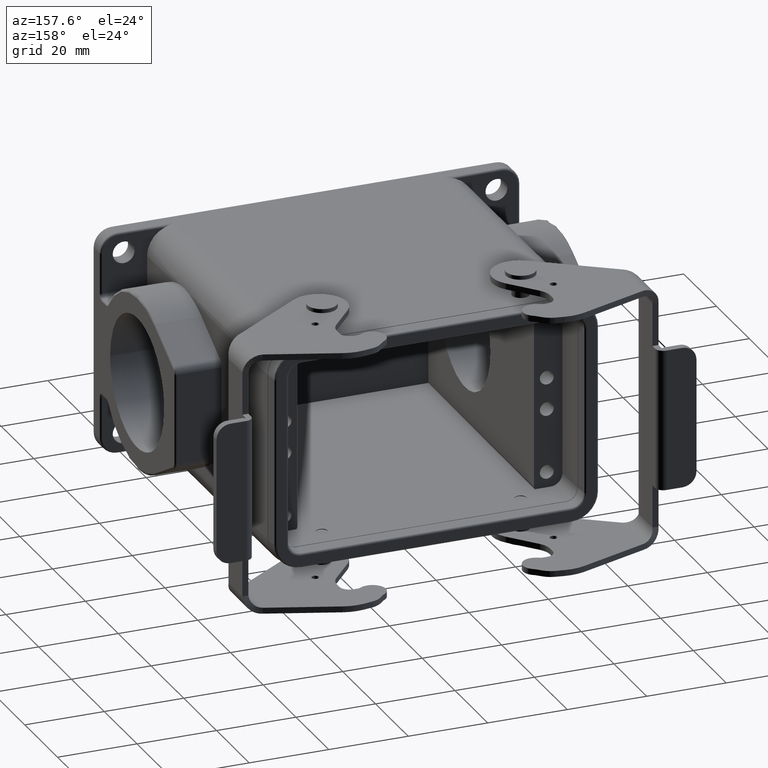
[diagram: clean part render]
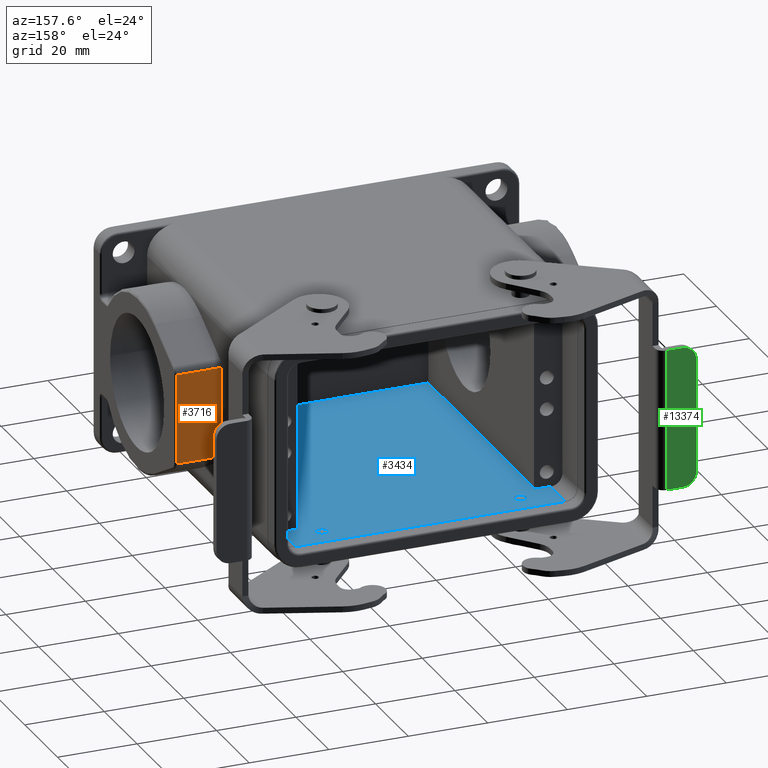
[diagram: same view with three faces highlighted in distinct colors, each labeled with its STEP entity id]
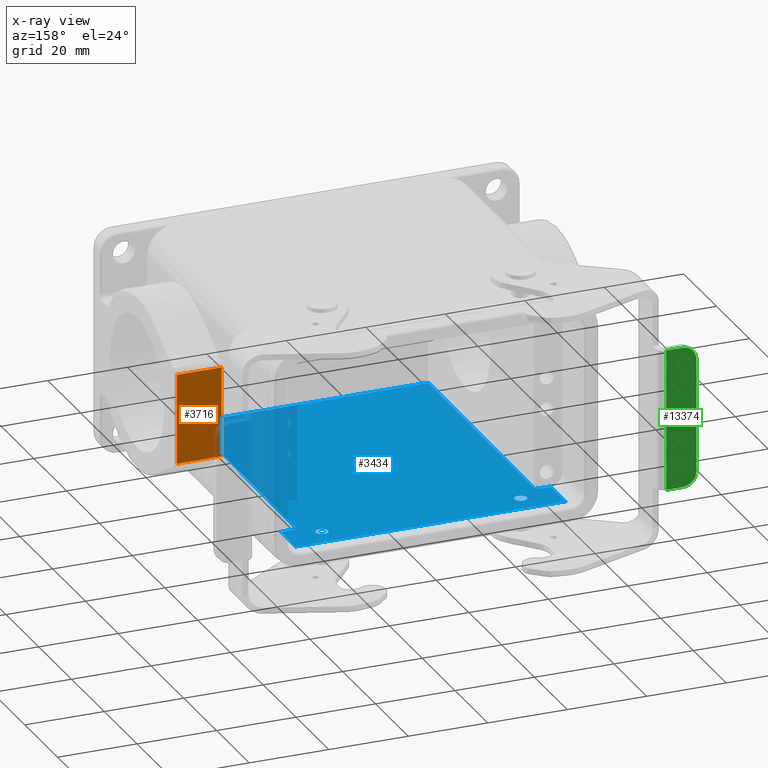
[diagram: x-ray of the same camera — body ghosted, the three highlighted faces saturated]
A machine part, auxiliary view with three faces highlighted in distinct colors.
The next image is the same camera in x-ray (body ghosted, the three faces saturated) — at least one of them is partly hidden behind the body in this view.
Their STEP definitions:

[orange] entity #3716 — the highlighted planar face has unit normal (0, 1, 0).
#536=DIRECTION('',(1.E0,8.928944113092E-14,5.077550965719E-14));
#537=VECTOR('',#536,1.13E1);
#538=CARTESIAN_POINT('',(4.1E1,4.85E1,1.131623794054E1));
#539=LINE('',#538,#537);
#548=DIRECTION('',(-1.E0,5.093270937749E-14,3.644015276351E-11));
#549=VECTOR('',#548,1.13E1);
#550=CARTESIAN_POINT('',(5.23E1,4.85E1,-1.131623794036E1));
#551=LINE('',#550,#549);
#809=DIRECTION('',(0.E0,-8.947526587778E-14,-1.E0));
#810=VECTOR('',#809,2.263247588090E1);
#811=CARTESIAN_POINT('',(5.23E1,4.85E1,1.131623794054E1));
#812=LINE('',#811,#810);
#1752=DIRECTION('',(0.E0,-1.946479468254E-14,-1.E0));
#1753=VECTOR('',#1752,2.263247588049E1);
#1754=CARTESIAN_POINT('',(4.1E1,4.85E1,1.131623794054E1));
#1755=LINE('',#1754,#1753);
#2637=CARTESIAN_POINT('',(5.23E1,4.85E1,-1.131623794054E1));
#2638=VERTEX_POINT('',#2637);
#2639=CARTESIAN_POINT('',(5.23E1,4.85E1,1.131623794054E1));
#2640=VERTEX_POINT('',#2639);
#2686=CARTESIAN_POINT('',(4.1E1,4.85E1,1.131623794054E1));
#2687=VERTEX_POINT('',#2686);
#2688=CARTESIAN_POINT('',(4.1E1,4.85E1,-1.131623793995E1));
#2689=VERTEX_POINT('',#2688);
#3702=CARTESIAN_POINT('',(4.665E1,4.85E1,1.266986515702E-10));
#3703=DIRECTION('',(0.E0,1.E0,0.E0));
#3704=DIRECTION('',(0.E0,0.E0,-1.E0));
#3705=AXIS2_PLACEMENT_3D('',#3702,#3703,#3704);
#3706=PLANE('',#3705);
#3708=ORIENTED_EDGE('',*,*,#3707,.F.);
#3710=ORIENTED_EDGE('',*,*,#3709,.F.);
#3711=ORIENTED_EDGE('',*,*,#3692,.F.);
#3713=ORIENTED_EDGE('',*,*,#3712,.T.);
#3714=EDGE_LOOP('',(#3708,#3710,#3711,#3713));
#3715=FACE_OUTER_BOUND('',#3714,.F.);
#3716=ADVANCED_FACE('',(#3715),#3706,.T.);
#3692=EDGE_CURVE('',#2687,#2640,#539,.T.);
#3707=EDGE_CURVE('',#2638,#2689,#551,.T.);
#3709=EDGE_CURVE('',#2640,#2638,#812,.T.);
#3712=EDGE_CURVE('',#2687,#2689,#1755,.T.);

[blue] entity #3434 — the highlighted planar face has unit normal (0, 0.0087, 1).
#58=DIRECTION('',(-1.E0,-7.791093560700E-13,-1.639753412194E-12));
#59=VECTOR('',#58,3.921572421078E0);
#60=CARTESIAN_POINT('',(-3.E1,6.75E1,-2.392145818988E1));
#61=LINE('',#60,#59);
#240=DIRECTION('',(-8.726203232145E-3,9.999238504777E-1,-8.726203242659E-3));
#241=VECTOR('',#240,9.000685397894E0);
#242=CARTESIAN_POINT('',(-3.392157242108E1,6.75E1,-2.392145818989E1));
#243=LINE('',#242,#241);
#244=DIRECTION('',(1.E0,3.594498233759E-14,0.E0));
#245=VECTOR('',#244,6.800022846190E1);
#246=CARTESIAN_POINT('',(-3.400011423109E1,7.65E1,-2.399999999999E1));
#247=LINE('',#246,#245);
#248=DIRECTION('',(-8.726203234119E-3,-9.999238504777E-1,8.726203242658E-3));
#249=VECTOR('',#248,9.000685397894E0);
#250=CARTESIAN_POINT('',(3.400011423081E1,7.65E1,-2.399999999999E1));
#251=LINE('',#250,#249);
#252=DIRECTION('',(-3.490518503498E-3,-9.999558314179E-1,8.726482337377E-3));
#253=VECTOR('',#252,6.450284899938E1);
#254=CARTESIAN_POINT('',(3.E1,6.75E1,-2.392145818988E1));
#255=LINE('',#254,#253);
#256=DIRECTION('',(-1.E0,-3.576893537336E-12,2.589228246525E-14));
#257=VECTOR('',#256,5.954970322408E1);
#258=CARTESIAN_POINT('',(2.977485161204E1,3.000000000001E0,-2.335857521738E1));
#259=LINE('',#258,#257);
#260=DIRECTION('',(-3.490518503497E-3,9.999558314179E-1,-8.726482337378E-3));
#261=VECTOR('',#260,6.450284899960E1);
#262=CARTESIAN_POINT('',(-2.977485161204E1,2.999999999788E0,-2.335857521738E1));
#263=LINE('',#262,#261);
#264=CARTESIAN_POINT('',(2.350000064421E1,7.09E1,-2.395112954037E1));
#265=CARTESIAN_POINT('',(2.350000064421E1,7.072325703317E1,-2.394958712786E1));
#266=CARTESIAN_POINT('',(2.355773932120E1,7.039029182697E1,-2.394668138453E1));
#267=CARTESIAN_POINT('',(2.382407997258E1,6.991798080872E1,-2.394255958872E1));
#268=CARTESIAN_POINT('',(2.423193453837E1,6.957605543718E1,-2.393957565121E1));
#269=CARTESIAN_POINT('',(2.473359668222E1,6.939225367247E1,-2.393797163751E1));
#270=CARTESIAN_POINT('',(2.526753825440E1,6.939246345142E1,-2.393797346822E1));
#271=CARTESIAN_POINT('',(2.576904742370E1,6.957661385286E1,-2.393958052443E1));
#272=CARTESIAN_POINT('',(2.617672150041E1,6.991895585159E1,-2.394256809779E1));
#273=CARTESIAN_POINT('',(2.644249092965E1,7.039114649015E1,-2.394668884306E1));
#274=CARTESIAN_POINT('',(2.649999935579E1,7.072360895778E1,-2.394959019906E1));
#275=CARTESIAN_POINT('',(2.649999935579E1,7.09E1,-2.395112954037E1));
#277=CARTESIAN_POINT('',(2.649999935579E1,7.09E1,-2.395112954037E1));
#278=CARTESIAN_POINT('',(2.649999935579E1,7.107674296683E1,-2.395267195287E1));
#279=CARTESIAN_POINT('',(2.644226067879E1,7.140970817303E1,-2.395557769621E1));
#280=CARTESIAN_POINT('',(2.617592002741E1,7.188201919128E1,-2.395969949202E1));
#281=CARTESIAN_POINT('',(2.576806546163E1,7.222394456282E1,-2.396268342953E1));
#282=CARTESIAN_POINT('',(2.526640331777E1,7.240774632753E1,-2.396428744323E1));
#283=CARTESIAN_POINT('',(2.473246174559E1,7.240753654858E1,-2.396428561252E1));
#284=CARTESIAN_POINT('',(2.423095257629E1,7.222338614714E1,-2.396267855631E1));
#285=CARTESIAN_POINT('',(2.382327849958E1,7.188104414841E1,-2.395969098295E1));
#286=CARTESIAN_POINT('',(2.355750907034E1,7.140885350985E1,-2.395557023768E1));
#287=CARTESIAN_POINT('',(2.350000064421E1,7.107639104222E1,-2.395266888167E1));
#288=CARTESIAN_POINT('',(2.350000064421E1,7.09E1,-2.395112954037E1));
#290=CARTESIAN_POINT('',(-2.649999935579E1,7.09E1,-2.395112954037E1));
#291=CARTESIAN_POINT('',(-2.649999935579E1,7.072325703317E1,-2.394958712786E1));
#292=CARTESIAN_POINT('',(-2.644226067880E1,7.039029182697E1,-2.394668138453E1));
#293=CARTESIAN_POINT('',(-2.617592002741E1,6.991798080872E1,-2.394255958872E1));
#294=CARTESIAN_POINT('',(-2.576806546163E1,6.957605543718E1,-2.393957565121E1));
#295=CARTESIAN_POINT('',(-2.526640331777E1,6.939225367247E1,-2.393797163751E1));
#296=CARTESIAN_POINT('',(-2.473246174559E1,6.939246345142E1,-2.393797346822E1));
#297=CARTESIAN_POINT('',(-2.423095257629E1,6.957661385286E1,-2.393958052443E1));
#298=CARTESIAN_POINT('',(-2.382327849959E1,6.991895585159E1,-2.394256809779E1));
#299=CARTESIAN_POINT('',(-2.355750907034E1,7.039114649015E1,-2.394668884307E1));
#300=CARTESIAN_POINT('',(-2.350000064421E1,7.072360895778E1,-2.394959019906E1));
#301=CARTESIAN_POINT('',(-2.350000064421E1,7.09E1,-2.395112954037E1));
#303=CARTESIAN_POINT('',(-2.350000064421E1,7.09E1,-2.395112954037E1));
#304=CARTESIAN_POINT('',(-2.350000064421E1,7.107674296683E1,-2.395267195287E1));
#305=CARTESIAN_POINT('',(-2.355773932121E1,7.140970817303E1,-2.395557769621E1));
#306=CARTESIAN_POINT('',(-2.382407997259E1,7.188201919128E1,-2.395969949202E1));
#307=CARTESIAN_POINT('',(-2.423193453837E1,7.222394456282E1,-2.396268342953E1));
#308=CARTESIAN_POINT('',(-2.473359668223E1,7.240774632753E1,-2.396428744323E1));
#309=CARTESIAN_POINT('',(-2.526753825441E1,7.240753654858E1,-2.396428561252E1));
#310=CARTESIAN_POINT('',(-2.576904742371E1,7.222338614714E1,-2.396267855631E1));
#311=CARTESIAN_POINT('',(-2.617672150042E1,7.188104414841E1,-2.395969098295E1));
#312=CARTESIAN_POINT('',(-2.644249092966E1,7.140885350985E1,-2.395557023768E1));
#313=CARTESIAN_POINT('',(-2.649999935579E1,7.107639104222E1,-2.395266888167E1));
#314=CARTESIAN_POINT('',(-2.649999935579E1,7.09E1,-2.395112954037E1));
#342=CARTESIAN_POINT('',(-3.400011423081E1,7.65E1,-2.399999999998E1));
#360=CARTESIAN_POINT('',(3.400011423081E1,7.65E1,-2.399999999999E1));
#1806=DIRECTION('',(-1.E0,2.899011557689E-14,1.819129752450E-12));
#1807=VECTOR('',#1806,3.921572420782E0);
#1808=CARTESIAN_POINT('',(3.392157242078E1,6.75E1,-2.392145818989E1));
#1809=LINE('',#1808,#1807);
#2733=VERTEX_POINT('',#342);
#2742=VERTEX_POINT('',#360);
#2929=CARTESIAN_POINT('',(-2.977485161204E1,2.999999999788E0,
-2.335857521738E1));
#2931=VERTEX_POINT('',#2929);
#2937=CARTESIAN_POINT('',(2.977485161204E1,3.000000000001E0,-2.335857521738E1));
#2938=VERTEX_POINT('',#2937);
#2941=CARTESIAN_POINT('',(-3.E1,6.75E1,-2.392145818988E1));
#2942=CARTESIAN_POINT('',(-3.392157242108E1,6.75E1,-2.392145818989E1));
#2943=VERTEX_POINT('',#2941);
#2944=VERTEX_POINT('',#2942);
#2945=CARTESIAN_POINT('',(3.E1,6.75E1,-2.392145818988E1));
#2946=VERTEX_POINT('',#2945);
#2947=CARTESIAN_POINT('',(3.392157242078E1,6.75E1,-2.392145818989E1));
#2948=VERTEX_POINT('',#2947);
#2949=VERTEX_POINT('',#264);
#2950=VERTEX_POINT('',#275);
#2951=VERTEX_POINT('',#290);
#2952=VERTEX_POINT('',#301);
#3402=CARTESIAN_POINT('',(-1.506350599811E-12,3.975E1,-2.367928760869E1));
#3403=DIRECTION('',(0.E0,8.726535498301E-3,9.999619230642E-1));
#3404=DIRECTION('',(-1.E0,0.E0,0.E0));
#3405=AXIS2_PLACEMENT_3D('',#3402,#3403,#3404);
#3406=PLANE('',#3405);
#3407=ORIENTED_EDGE('',*,*,#3244,.T.);
#3409=ORIENTED_EDGE('',*,*,#3408,.T.);
#3411=ORIENTED_EDGE('',*,*,#3410,.T.);
#3413=ORIENTED_EDGE('',*,*,#3412,.T.);
#3415=ORIENTED_EDGE('',*,*,#3414,.T.);
#3417=ORIENTED_EDGE('',*,*,#3416,.T.);
#3418=ORIENTED_EDGE('',*,*,#3351,.T.);
#3419=ORIENTED_EDGE('',*,*,#3395,.T.);
#3420=EDGE_LOOP('',(#3407,#3409,#3411,#3413,#3415,#3417,#3418,#3419));
#3421=FACE_OUTER_BOUND('',#3420,.F.);
#3423=ORIENTED_EDGE('',*,*,#3422,.T.);
#3425=ORIENTED_EDGE('',*,*,#3424,.T.);
#3426=EDGE_LOOP('',(#3423,#3425));
#3427=FACE_BOUND('',#3426,.F.);
#3429=ORIENTED_EDGE('',*,*,#3428,.T.);
#3431=ORIENTED_EDGE('',*,*,#3430,.T.);
#3432=EDGE_LOOP('',(#3429,#3431));
#3433=FACE_BOUND('',#3432,.F.);
#3434=ADVANCED_FACE('',(#3421,#3427,#3433),#3406,.T.);
#276=B_SPLINE_CURVE_WITH_KNOTS('',3,(#264,#265,#266,#267,#268,#269,#270,#271,
#272,#273,#274,#275),.UNSPECIFIED.,.F.,.F.,(4,1,1,1,1,1,1,1,1,4),(0.E0,
1.111111111111E-1,2.222222222222E-1,3.333333333333E-1,4.444444444444E-1,
5.555555555556E-1,6.666666666667E-1,7.777777777778E-1,8.888888888889E-1,1.E0),
.UNSPECIFIED.);
#289=B_SPLINE_CURVE_WITH_KNOTS('',3,(#277,#278,#279,#280,#281,#282,#283,#284,
#285,#286,#287,#288),.UNSPECIFIED.,.F.,.F.,(4,1,1,1,1,1,1,1,1,4),(0.E0,
1.111111111111E-1,2.222222222222E-1,3.333333333333E-1,4.444444444444E-1,
5.555555555556E-1,6.666666666667E-1,7.777777777778E-1,8.888888888889E-1,1.E0),
.UNSPECIFIED.);
#302=B_SPLINE_CURVE_WITH_KNOTS('',3,(#290,#291,#292,#293,#294,#295,#296,#297,
#298,#299,#300,#301),.UNSPECIFIED.,.F.,.F.,(4,1,1,1,1,1,1,1,1,4),(0.E0,
1.111111111111E-1,2.222222222222E-1,3.333333333333E-1,4.444444444444E-1,
5.555555555556E-1,6.666666666667E-1,7.777777777778E-1,8.888888888889E-1,1.E0),
.UNSPECIFIED.);
#315=B_SPLINE_CURVE_WITH_KNOTS('',3,(#303,#304,#305,#306,#307,#308,#309,#310,
#311,#312,#313,#314),.UNSPECIFIED.,.F.,.F.,(4,1,1,1,1,1,1,1,1,4),(0.E0,
1.111111111111E-1,2.222222222222E-1,3.333333333333E-1,4.444444444444E-1,
5.555555555556E-1,6.666666666667E-1,7.777777777778E-1,8.888888888889E-1,1.E0),
.UNSPECIFIED.);
#3244=EDGE_CURVE('',#2943,#2944,#61,.T.);
#3351=EDGE_CURVE('',#2938,#2931,#259,.T.);
#3395=EDGE_CURVE('',#2931,#2943,#263,.T.);
#3408=EDGE_CURVE('',#2944,#2733,#243,.T.);
#3410=EDGE_CURVE('',#2733,#2742,#247,.T.);
#3412=EDGE_CURVE('',#2742,#2948,#251,.T.);
#3414=EDGE_CURVE('',#2948,#2946,#1809,.T.);
#3416=EDGE_CURVE('',#2946,#2938,#255,.T.);
#3422=EDGE_CURVE('',#2949,#2950,#276,.T.);
#3424=EDGE_CURVE('',#2950,#2949,#289,.T.);
#3428=EDGE_CURVE('',#2951,#2952,#302,.T.);
#3430=EDGE_CURVE('',#2952,#2951,#315,.T.);

[green] entity #13374 — the highlighted planar face has unit normal (0, 1, 0).
#11481=DIRECTION('',(1.E0,1.323558350903E-12,7.753024648576E-13));
#11482=VECTOR('',#11481,4.037057655425E0);
#11483=CARTESIAN_POINT('',(-5.688241501566E1,9.239377665503E1,1.775E1));
#11484=LINE('',#11483,#11482);
#11519=DIRECTION('',(0.E0,-6.696553642983E-13,1.E0));
#11520=VECTOR('',#11519,2.850000000002E1);
#11521=CARTESIAN_POINT('',(-6.038241501566E1,9.239377665504E1,
-1.425000000003E1));
#11522=LINE('',#11521,#11520);
#11549=DIRECTION('',(1.E0,-3.576423629021E-12,3.774429366356E-12));
#11550=VECTOR('',#11549,4.037057655443E0);
#11551=CARTESIAN_POINT('',(-5.688241501618E1,9.239377665505E1,
-1.775000000002E1));
#11552=LINE('',#11551,#11550);
#11883=DIRECTION('',(-1.431233222704E-11,-1.961498256464E-14,-1.E0));
#11884=VECTOR('',#11883,3.550000000001E1);
#11885=CARTESIAN_POINT('',(-5.284535736023E1,9.239377665503E1,1.775E1));
#11886=LINE('',#11885,#11884);
#11891=CARTESIAN_POINT('',(-5.688241501566E1,9.239377665506E1,
-1.425000000005E1));
#11892=DIRECTION('',(0.E0,-1.E0,0.E0));
#11893=DIRECTION('',(-1.E0,0.E0,8.571683045895E-12));
#11894=AXIS2_PLACEMENT_3D('',#11891,#11892,#11893);
#11896=CARTESIAN_POINT('',(-5.688241501566E1,9.239377665502E1,1.425E1));
#11897=DIRECTION('',(0.E0,-1.E0,0.E0));
#11898=DIRECTION('',(-4.019641762300E-12,0.E0,1.E0));
#11899=AXIS2_PLACEMENT_3D('',#11896,#11897,#11898);
#11934=CARTESIAN_POINT('',(-5.688241501566E1,9.239377665503E1,1.775E1));
#11936=VERTEX_POINT('',#11934);
#11949=CARTESIAN_POINT('',(-5.284535735963E1,9.239377665503E1,
1.775000000001E1));
#11950=VERTEX_POINT('',#11949);
#11951=CARTESIAN_POINT('',(-6.038241501566E1,9.239377665504E1,
-1.425000000003E1));
#11952=CARTESIAN_POINT('',(-6.038241501566E1,9.239377665503E1,
1.424999999999E1));
#11953=VERTEX_POINT('',#11951);
#11954=VERTEX_POINT('',#11952);
#11955=CARTESIAN_POINT('',(-5.284535736074E1,9.239377665503E1,-1.775E1));
#11956=VERTEX_POINT('',#11955);
#11957=CARTESIAN_POINT('',(-5.688241501618E1,9.239377665505E1,
-1.775000000002E1));
#11958=VERTEX_POINT('',#11957);
#13361=CARTESIAN_POINT('',(-5.661388618805E1,9.239377665503E1,
-9.993783578466E-12));
#13362=DIRECTION('',(0.E0,1.E0,0.E0));
#13363=DIRECTION('',(1.E0,0.E0,0.E0));
#13364=AXIS2_PLACEMENT_3D('',#13361,#13362,#13363);
#13365=PLANE('',#13364);
#13366=ORIENTED_EDGE('',*,*,#12810,.F.);
#13367=ORIENTED_EDGE('',*,*,#12825,.T.);
#13368=ORIENTED_EDGE('',*,*,#12846,.T.);
#13369=ORIENTED_EDGE('',*,*,#13353,.F.);
#13370=ORIENTED_EDGE('',*,*,#12772,.F.);
#13371=ORIENTED_EDGE('',*,*,#12795,.T.);
#13372=EDGE_LOOP('',(#13366,#13367,#13368,#13369,#13370,#13371));
#13373=FACE_OUTER_BOUND('',#13372,.F.);
#13374=ADVANCED_FACE('',(#13373),#13365,.T.);
#11895=CIRCLE('',#11894,3.5E0);
#11900=CIRCLE('',#11899,3.5E0);
#12772=EDGE_CURVE('',#11936,#11950,#11484,.T.);
#12795=EDGE_CURVE('',#11936,#11954,#11900,.T.);
#12810=EDGE_CURVE('',#11953,#11954,#11522,.T.);
#12825=EDGE_CURVE('',#11953,#11958,#11895,.T.);
#12846=EDGE_CURVE('',#11958,#11956,#11552,.T.);
#13353=EDGE_CURVE('',#11950,#11956,#11886,.T.);